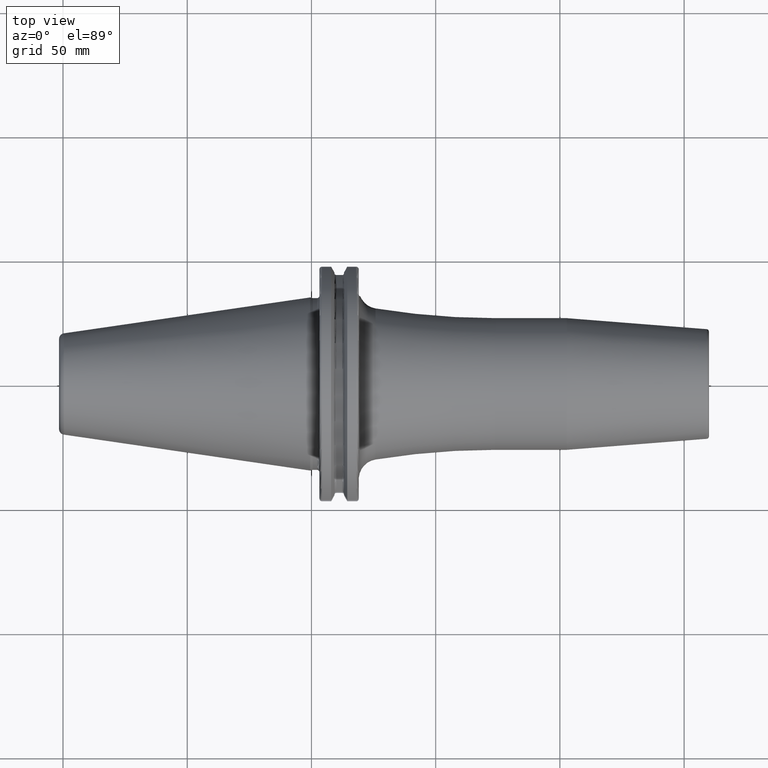
[diagram: clean part render]
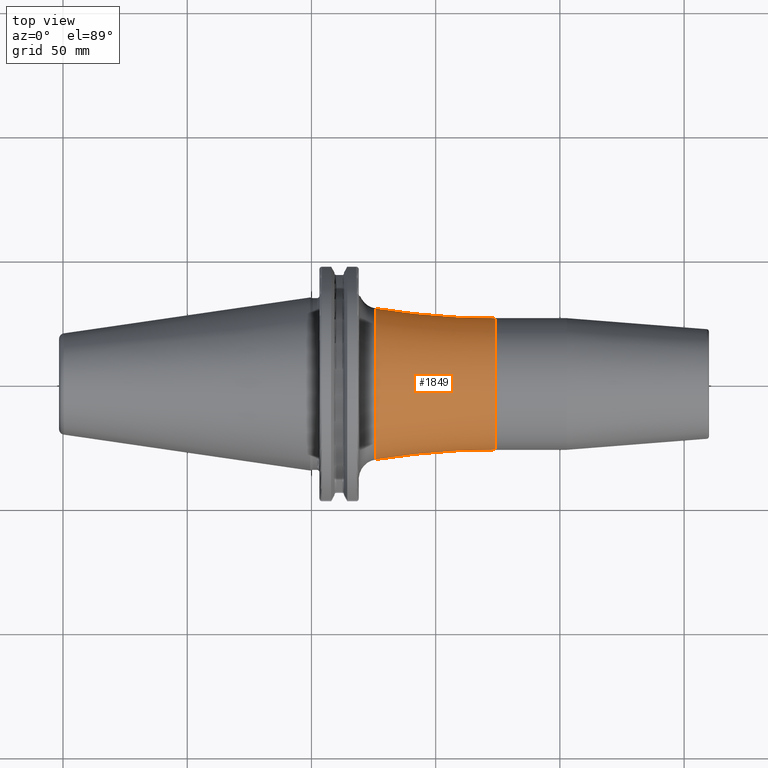
[diagram: same view with one face highlighted and labeled with its STEP entity id]
A machine part, top view. The second image highlights one B-rep face of the part: STEP entity #1849.
In plain terms, the highlighted toroidal blend (fillet) surface has major radius 326.5 mm and minor (blend) radius 300 mm.
Its self-contained STEP definition (entity closure, byte-faithful):
#229=CARTESIAN_POINT('',(2.576232876712E1,0.E0,0.E0));
#230=DIRECTION('',(1.E0,0.E0,0.E0));
#231=DIRECTION('',(0.E0,1.E0,0.E0));
#232=AXIS2_PLACEMENT_3D('',#229,#230,#231);
#239=CARTESIAN_POINT('',(7.405E1,-3.265E2,-7.996943598432E-14));
#240=DIRECTION('',(0.E0,0.E0,1.E0));
#241=DIRECTION('',(0.E0,1.E0,0.E0));
#242=AXIS2_PLACEMENT_3D('',#239,#240,#241);
#244=CARTESIAN_POINT('',(7.405E1,3.265E2,3.998471799216E-14));
#245=DIRECTION('',(0.E0,0.E0,-1.E0));
#246=DIRECTION('',(0.E0,-1.E0,0.E0));
#247=AXIS2_PLACEMENT_3D('',#244,#245,#246);
#267=CARTESIAN_POINT('',(7.405E1,0.E0,0.E0));
#268=DIRECTION('',(1.E0,0.E0,0.E0));
#269=DIRECTION('',(0.E0,1.E0,0.E0));
#270=AXIS2_PLACEMENT_3D('',#267,#268,#269);
#1509=CARTESIAN_POINT('',(7.405E1,2.65E1,0.E0));
#1510=CARTESIAN_POINT('',(7.405E1,-2.65E1,0.E0));
#1511=VERTEX_POINT('',#1509);
#1512=VERTEX_POINT('',#1510);
#1520=CARTESIAN_POINT('',(2.576232876712E1,-3.041166722259E1,0.E0));
#1521=CARTESIAN_POINT('',(2.576232876712E1,3.041166722259E1,0.E0));
#1522=VERTEX_POINT('',#1520);
#1523=VERTEX_POINT('',#1521);
#1835=CARTESIAN_POINT('',(7.405E1,0.E0,0.E0));
#1836=DIRECTION('',(1.E0,0.E0,0.E0));
#1837=DIRECTION('',(0.E0,-1.E0,0.E0));
#1838=AXIS2_PLACEMENT_3D('',#1835,#1836,#1837);
#1839=TOROIDAL_SURFACE('',#1838,3.265E2,3.E2);
#1840=ORIENTED_EDGE('',*,*,#1823,.F.);
#1842=ORIENTED_EDGE('',*,*,#1841,.F.);
#1844=ORIENTED_EDGE('',*,*,#1843,.T.);
#1846=ORIENTED_EDGE('',*,*,#1845,.T.);
#1847=EDGE_LOOP('',(#1840,#1842,#1844,#1846));
#1848=FACE_OUTER_BOUND('',#1847,.F.);
#1849=ADVANCED_FACE('',(#1848),#1839,.F.);
#233=CIRCLE('',#232,3.041166722259E1);
#243=CIRCLE('',#242,3.E2);
#248=CIRCLE('',#247,3.E2);
#271=CIRCLE('',#270,2.65E1);
#1823=EDGE_CURVE('',#1523,#1522,#233,.T.);
#1841=EDGE_CURVE('',#1511,#1523,#248,.T.);
#1843=EDGE_CURVE('',#1511,#1512,#271,.T.);
#1845=EDGE_CURVE('',#1512,#1522,#243,.T.);